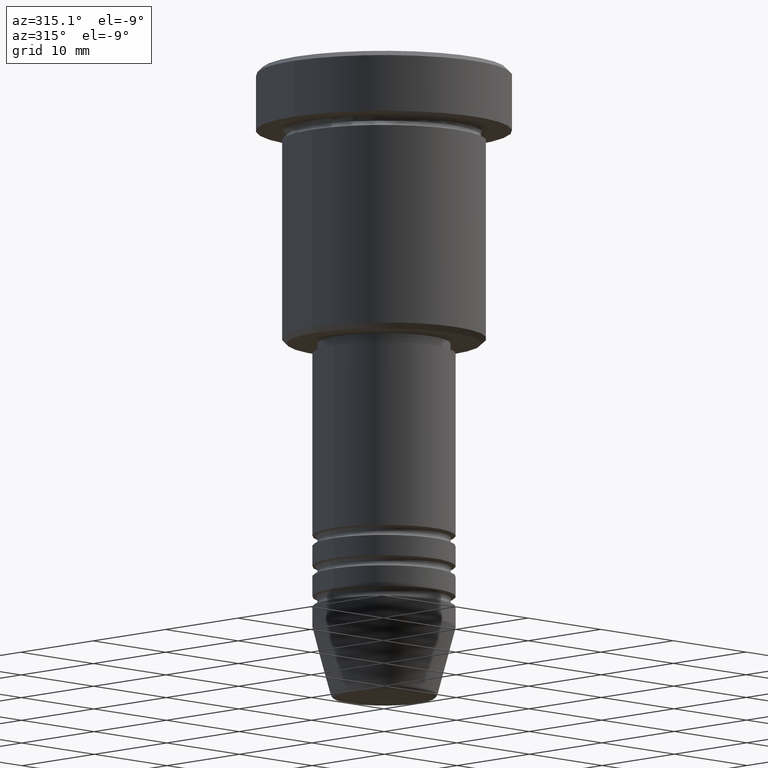
[diagram: clean part render]
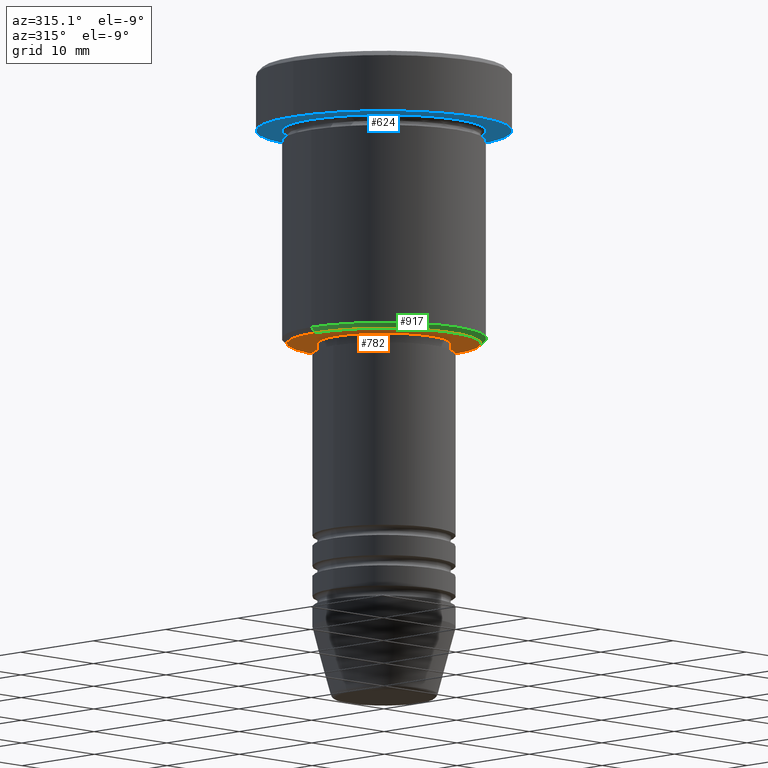
[diagram: same view with three faces highlighted in distinct colors, each labeled with its STEP entity id]
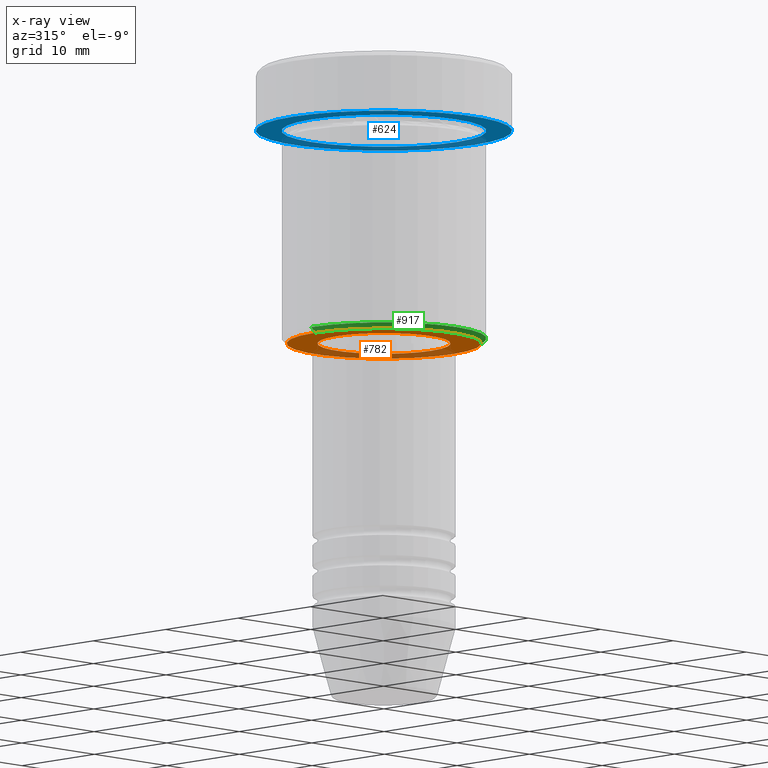
[diagram: x-ray of the same camera — body ghosted, the three highlighted faces saturated]
A machine part, auxiliary view with three faces highlighted in distinct colors.
The next image is the same camera in x-ray (body ghosted, the three faces saturated) — at least one of them is partly hidden behind the body in this view.
Their STEP definitions:

[orange] entity #782 — the highlighted planar face has unit normal (0, 0, -1).
#31 = AXIS2_PLACEMENT_3D ( 'NONE', #542, #943, #324 ) ;
#68 = VERTEX_POINT ( 'NONE', #535 ) ;
#98 = ORIENTED_EDGE ( 'NONE', *, *, #454, .T. ) ;
#117 = CARTESIAN_POINT ( 'NONE',  ( 0.000000000000000000, 0.000000000000000000, -26.99999999999999645 ) ) ;
#118 = EDGE_CURVE ( 'NONE', #315, #68, #424, .T. ) ;
#232 = DIRECTION ( 'NONE',  ( -1.000000000000000000, 0.000000000000000000, -0.000000000000000000 ) ) ;
#233 = EDGE_LOOP ( 'NONE', ( #1079, #1007 ) ) ;
#276 = EDGE_CURVE ( 'NONE', #68, #315, #594, .T. ) ;
#309 = PLANE ( 'NONE',  #900 ) ;
#315 = VERTEX_POINT ( 'NONE', #625 ) ;
#317 = DIRECTION ( 'NONE',  ( 0.000000000000000000, 0.000000000000000000, -1.000000000000000000 ) ) ;
#324 = DIRECTION ( 'NONE',  ( 1.000000000000000000, 0.000000000000000000, 0.000000000000000000 ) ) ;
#333 = CARTESIAN_POINT ( 'NONE',  ( 0.000000000000000000, 10.00000000000000000, -26.99999999999999645 ) ) ;
#374 = AXIS2_PLACEMENT_3D ( 'NONE', #952, #514, #1121 ) ;
#424 = CIRCLE ( 'NONE', #1027, 9.500000000000001776 ) ;
#445 = DIRECTION ( 'NONE',  ( 0.000000000000000000, 0.000000000000000000, -1.000000000000000000 ) ) ;
#454 = EDGE_CURVE ( 'NONE', #650, #1164, #675, .T. ) ;
#514 = DIRECTION ( 'NONE',  ( 0.000000000000000000, 0.000000000000000000, -1.000000000000000000 ) ) ;
#524 = CARTESIAN_POINT ( 'NONE',  ( 0.000000000000000000, 0.000000000000000000, -26.99999999999999645 ) ) ;
#525 = CIRCLE ( 'NONE', #31, 6.500000000000000000 ) ;
#535 = CARTESIAN_POINT ( 'NONE',  ( 9.500000000000001776, 0.000000000000000000, -26.99999999999999645 ) ) ;
#542 = CARTESIAN_POINT ( 'NONE',  ( 0.000000000000000000, 0.000000000000000000, -26.99999999999999645 ) ) ;
#559 = DIRECTION ( 'NONE',  ( 1.000000000000000000, 0.000000000000000000, 0.000000000000000000 ) ) ;
#591 = ORIENTED_EDGE ( 'NONE', *, *, #843, .T. ) ;
#594 = CIRCLE ( 'NONE', #374, 9.500000000000001776 ) ;
#625 = CARTESIAN_POINT ( 'NONE',  ( -9.500000000000001776, 1.194030629168669469E-15, -26.99999999999999645 ) ) ;
#633 = CARTESIAN_POINT ( 'NONE',  ( 6.500000000000000000, 0.000000000000000000, -26.99999999999999645 ) ) ;
#650 = VERTEX_POINT ( 'NONE', #633 ) ;
#675 = CIRCLE ( 'NONE', #699, 6.500000000000000000 ) ;
#699 = AXIS2_PLACEMENT_3D ( 'NONE', #117, #826, #559 ) ;
#724 = CARTESIAN_POINT ( 'NONE',  ( -6.500000000000000000, 7.960204194457795477E-16, -26.99999999999999645 ) ) ;
#745 = EDGE_LOOP ( 'NONE', ( #98, #591 ) ) ;
#772 = FACE_BOUND ( 'NONE', #745, .T. ) ;
#782 = ADVANCED_FACE ( 'NONE', ( #946, #772 ), #309, .T. ) ;
#826 = DIRECTION ( 'NONE',  ( -0.000000000000000000, -0.000000000000000000, 1.000000000000000000 ) ) ;
#843 = EDGE_CURVE ( 'NONE', #1164, #650, #525, .T. ) ;
#900 = AXIS2_PLACEMENT_3D ( 'NONE', #333, #317, #232 ) ;
#943 = DIRECTION ( 'NONE',  ( -0.000000000000000000, -0.000000000000000000, 1.000000000000000000 ) ) ;
#946 = FACE_OUTER_BOUND ( 'NONE', #233, .T. ) ;
#952 = CARTESIAN_POINT ( 'NONE',  ( 0.000000000000000000, 0.000000000000000000, -26.99999999999999645 ) ) ;
#1007 = ORIENTED_EDGE ( 'NONE', *, *, #118, .T. ) ;
#1027 = AXIS2_PLACEMENT_3D ( 'NONE', #524, #445, #1168 ) ;
#1079 = ORIENTED_EDGE ( 'NONE', *, *, #276, .T. ) ;
#1121 = DIRECTION ( 'NONE',  ( -1.000000000000000000, 0.000000000000000000, 0.000000000000000000 ) ) ;
#1164 = VERTEX_POINT ( 'NONE', #724 ) ;
#1168 = DIRECTION ( 'NONE',  ( -1.000000000000000000, 0.000000000000000000, 0.000000000000000000 ) ) ;

[blue] entity #624 — the highlighted planar face has unit normal (0, 0, -1).
#93 = AXIS2_PLACEMENT_3D ( 'NONE', #1124, #122, #1081 ) ;
#122 = DIRECTION ( 'NONE',  ( 0.000000000000000000, 0.000000000000000000, -1.000000000000000000 ) ) ;
#125 = CIRCLE ( 'NONE', #220, 12.50000000000000000 ) ;
#134 = ORIENTED_EDGE ( 'NONE', *, *, #902, .T. ) ;
#179 = CIRCLE ( 'NONE', #848, 10.00000000000000000 ) ;
#188 = CARTESIAN_POINT ( 'NONE',  ( 0.000000000000000000, 0.000000000000000000, -5.999999999999996447 ) ) ;
#193 = DIRECTION ( 'NONE',  ( -0.000000000000000000, -0.000000000000000000, 1.000000000000000000 ) ) ;
#213 = CARTESIAN_POINT ( 'NONE',  ( 0.000000000000000000, 0.000000000000000000, -5.999999999999996447 ) ) ;
#220 = AXIS2_PLACEMENT_3D ( 'NONE', #213, #574, #926 ) ;
#329 = VERTEX_POINT ( 'NONE', #608 ) ;
#461 = DIRECTION ( 'NONE',  ( -0.000000000000000000, -0.000000000000000000, 1.000000000000000000 ) ) ;
#473 = EDGE_CURVE ( 'NONE', #329, #873, #179, .T. ) ;
#506 = CARTESIAN_POINT ( 'NONE',  ( -12.50000000000000000, 1.530808498934191521E-15, -5.999999999999996447 ) ) ;
#509 = CIRCLE ( 'NONE', #819, 12.50000000000000000 ) ;
#511 = PLANE ( 'NONE',  #93 ) ;
#571 = CARTESIAN_POINT ( 'NONE',  ( 0.000000000000000000, 0.000000000000000000, -5.999999999999996447 ) ) ;
#573 = ORIENTED_EDGE ( 'NONE', *, *, #473, .T. ) ;
#574 = DIRECTION ( 'NONE',  ( -0.000000000000000000, -0.000000000000000000, 1.000000000000000000 ) ) ;
#604 = EDGE_LOOP ( 'NONE', ( #880, #637 ) ) ;
#608 = CARTESIAN_POINT ( 'NONE',  ( 10.00000000000000000, 1.224646799147353256E-15, -5.999999999999996447 ) ) ;
#624 = ADVANCED_FACE ( 'NONE', ( #664, #1043 ), #511, .T. ) ;
#637 = ORIENTED_EDGE ( 'NONE', *, *, #1123, .F. ) ;
#645 = EDGE_CURVE ( 'NONE', #1147, #689, #125, .T. ) ;
#664 = FACE_BOUND ( 'NONE', #811, .T. ) ;
#689 = VERTEX_POINT ( 'NONE', #506 ) ;
#748 = DIRECTION ( 'NONE',  ( -1.000000000000000000, 0.000000000000000000, 0.000000000000000000 ) ) ;
#766 = DIRECTION ( 'NONE',  ( -0.000000000000000000, -0.000000000000000000, 1.000000000000000000 ) ) ;
#806 = CARTESIAN_POINT ( 'NONE',  ( 0.000000000000000000, 0.000000000000000000, -5.999999999999996447 ) ) ;
#811 = EDGE_LOOP ( 'NONE', ( #134, #573 ) ) ;
#819 = AXIS2_PLACEMENT_3D ( 'NONE', #806, #461, #1087 ) ;
#833 = CIRCLE ( 'NONE', #998, 10.00000000000000000 ) ;
#848 = AXIS2_PLACEMENT_3D ( 'NONE', #188, #193, #748 ) ;
#856 = CARTESIAN_POINT ( 'NONE',  ( -10.00000000000000000, 0.000000000000000000, -5.999999999999996447 ) ) ;
#873 = VERTEX_POINT ( 'NONE', #856 ) ;
#880 = ORIENTED_EDGE ( 'NONE', *, *, #645, .F. ) ;
#892 = CARTESIAN_POINT ( 'NONE',  ( 12.50000000000000000, 0.000000000000000000, -5.999999999999996447 ) ) ;
#902 = EDGE_CURVE ( 'NONE', #873, #329, #833, .T. ) ;
#926 = DIRECTION ( 'NONE',  ( 1.000000000000000000, 0.000000000000000000, 0.000000000000000000 ) ) ;
#998 = AXIS2_PLACEMENT_3D ( 'NONE', #571, #766, #1120 ) ;
#1043 = FACE_OUTER_BOUND ( 'NONE', #604, .T. ) ;
#1081 = DIRECTION ( 'NONE',  ( -1.000000000000000000, 0.000000000000000000, -0.000000000000000000 ) ) ;
#1087 = DIRECTION ( 'NONE',  ( 1.000000000000000000, 0.000000000000000000, 0.000000000000000000 ) ) ;
#1120 = DIRECTION ( 'NONE',  ( -1.000000000000000000, 0.000000000000000000, 0.000000000000000000 ) ) ;
#1123 = EDGE_CURVE ( 'NONE', #689, #1147, #509, .T. ) ;
#1124 = CARTESIAN_POINT ( 'NONE',  ( 0.000000000000000000, 12.50000000000000000, -5.999999999999996447 ) ) ;
#1147 = VERTEX_POINT ( 'NONE', #892 ) ;

[green] entity #917 — the highlighted conical surface has half-angle 45 deg.
#68 = VERTEX_POINT ( 'NONE', #535 ) ;
#86 = EDGE_LOOP ( 'NONE', ( #409, #1148, #682, #940 ) ) ;
#110 = LINE ( 'NONE', #280, #504 ) ;
#265 = CARTESIAN_POINT ( 'NONE',  ( 0.000000000000000000, 0.000000000000000000, -26.50000000000000355 ) ) ;
#276 = EDGE_CURVE ( 'NONE', #68, #315, #594, .T. ) ;
#280 = CARTESIAN_POINT ( 'NONE',  ( -10.00000000000000000, 1.224646799147353256E-15, -26.50000000000000355 ) ) ;
#315 = VERTEX_POINT ( 'NONE', #625 ) ;
#331 = EDGE_CURVE ( 'NONE', #429, #366, #776, .T. ) ;
#349 = EDGE_CURVE ( 'NONE', #68, #366, #449, .T. ) ;
#366 = VERTEX_POINT ( 'NONE', #888 ) ;
#374 = AXIS2_PLACEMENT_3D ( 'NONE', #952, #514, #1121 ) ;
#387 = CARTESIAN_POINT ( 'NONE',  ( -10.00000000000000000, 1.224646799147353256E-15, -26.50000000000000355 ) ) ;
#409 = ORIENTED_EDGE ( 'NONE', *, *, #537, .F. ) ;
#429 = VERTEX_POINT ( 'NONE', #387 ) ;
#449 = LINE ( 'NONE', #1064, #1068 ) ;
#504 = VECTOR ( 'NONE', #641, 1000.000000000000000 ) ;
#514 = DIRECTION ( 'NONE',  ( 0.000000000000000000, 0.000000000000000000, -1.000000000000000000 ) ) ;
#535 = CARTESIAN_POINT ( 'NONE',  ( 9.500000000000001776, 0.000000000000000000, -26.99999999999999645 ) ) ;
#537 = EDGE_CURVE ( 'NONE', #315, #429, #110, .T. ) ;
#538 = DIRECTION ( 'NONE',  ( -1.000000000000000000, 0.000000000000000000, 0.000000000000000000 ) ) ;
#594 = CIRCLE ( 'NONE', #374, 9.500000000000001776 ) ;
#623 = DIRECTION ( 'NONE',  ( -0.000000000000000000, -0.000000000000000000, 1.000000000000000000 ) ) ;
#625 = CARTESIAN_POINT ( 'NONE',  ( -9.500000000000001776, 1.194030629168669469E-15, -26.99999999999999645 ) ) ;
#640 = AXIS2_PLACEMENT_3D ( 'NONE', #1151, #623, #1166 ) ;
#641 = DIRECTION ( 'NONE',  ( -0.7071067811865512365, 8.659560562354979697E-17, 0.7071067811865439090 ) ) ;
#682 = ORIENTED_EDGE ( 'NONE', *, *, #349, .T. ) ;
#776 = CIRCLE ( 'NONE', #950, 10.00000000000000000 ) ;
#795 = FACE_OUTER_BOUND ( 'NONE', #86, .T. ) ;
#798 = DIRECTION ( 'NONE',  ( 0.7071067811865512365, 0.000000000000000000, 0.7071067811865439090 ) ) ;
#851 = CONICAL_SURFACE ( 'NONE', #640, 10.00000000000000000, 0.7853981633974533860 ) ;
#888 = CARTESIAN_POINT ( 'NONE',  ( 10.00000000000000000, 0.000000000000000000, -26.50000000000000355 ) ) ;
#917 = ADVANCED_FACE ( 'NONE', ( #795 ), #851, .T. ) ;
#940 = ORIENTED_EDGE ( 'NONE', *, *, #331, .F. ) ;
#950 = AXIS2_PLACEMENT_3D ( 'NONE', #265, #974, #538 ) ;
#952 = CARTESIAN_POINT ( 'NONE',  ( 0.000000000000000000, 0.000000000000000000, -26.99999999999999645 ) ) ;
#974 = DIRECTION ( 'NONE',  ( -0.000000000000000000, -0.000000000000000000, 1.000000000000000000 ) ) ;
#1064 = CARTESIAN_POINT ( 'NONE',  ( 10.00000000000000000, 0.000000000000000000, -26.50000000000000355 ) ) ;
#1068 = VECTOR ( 'NONE', #798, 1000.000000000000000 ) ;
#1121 = DIRECTION ( 'NONE',  ( -1.000000000000000000, 0.000000000000000000, 0.000000000000000000 ) ) ;
#1148 = ORIENTED_EDGE ( 'NONE', *, *, #276, .F. ) ;
#1151 = CARTESIAN_POINT ( 'NONE',  ( 0.000000000000000000, 0.000000000000000000, -26.50000000000000355 ) ) ;
#1166 = DIRECTION ( 'NONE',  ( 1.000000000000000000, 0.000000000000000000, 0.000000000000000000 ) ) ;